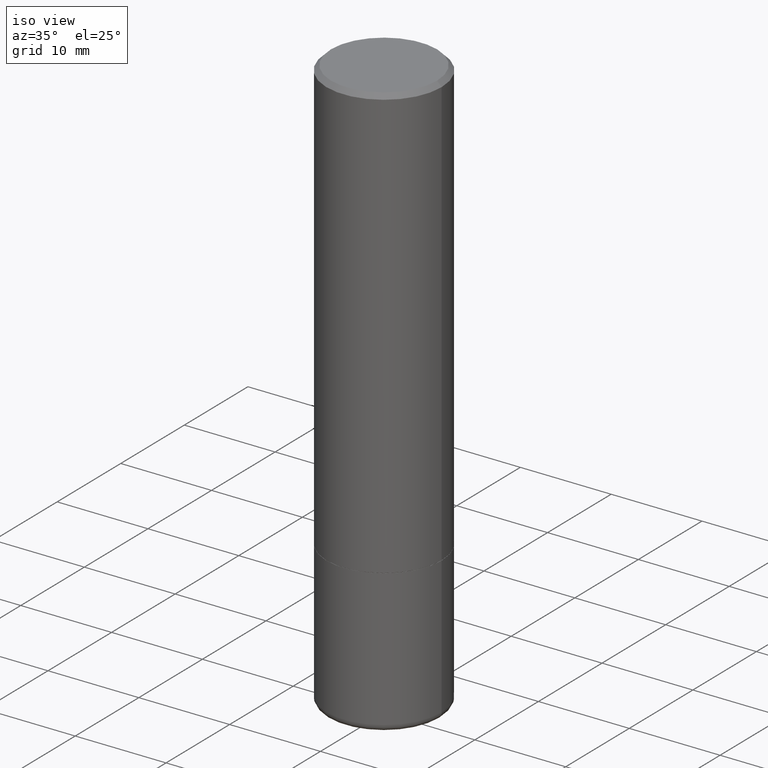
[diagram: clean part render]
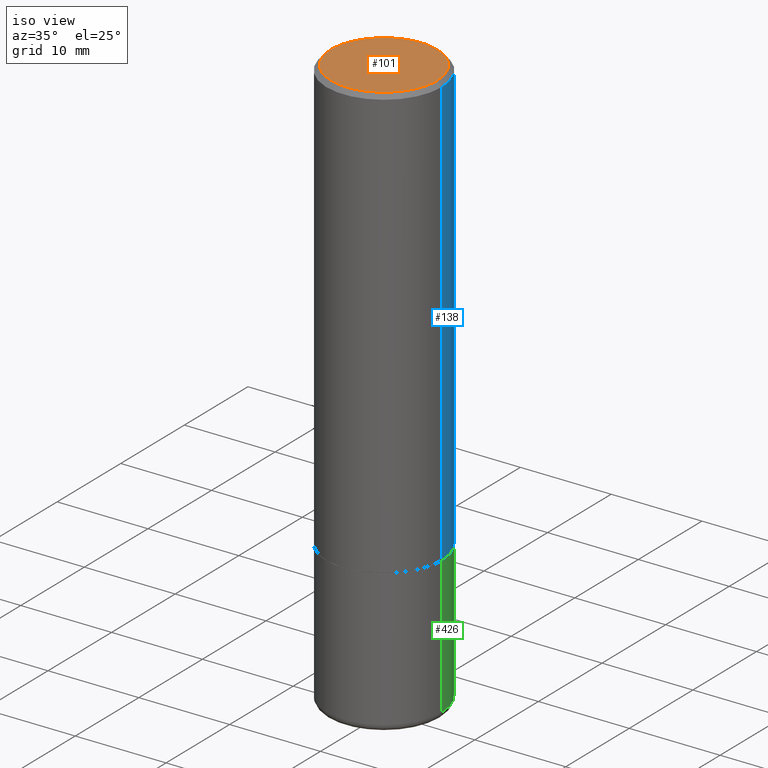
[diagram: same view with three faces highlighted in distinct colors, each labeled with its STEP entity id]
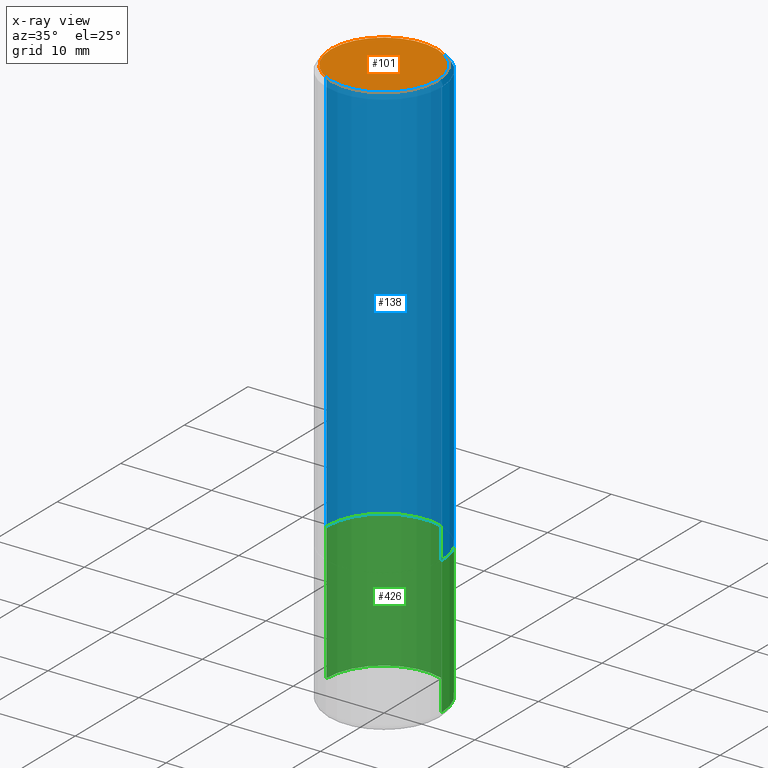
[diagram: x-ray of the same camera — body ghosted, the three highlighted faces saturated]
A machine part, iso view with three faces highlighted in distinct colors.
The next image is the same camera in x-ray (body ghosted, the three faces saturated) — at least one of them is partly hidden behind the body in this view.
Their STEP definitions:

[orange] entity #101 — the highlighted planar face has unit normal (0, -0, -1).
#13 = AXIS2_PLACEMENT_3D ( 'NONE', #108, #253, #174 ) ;
#18 = PLANE ( 'NONE',  #209 ) ;
#25 = EDGE_CURVE ( 'NONE', #64, #37, #145, .T. ) ;
#37 = VERTEX_POINT ( 'NONE', #420 ) ;
#45 = CARTESIAN_POINT ( 'NONE',  ( -1.043851414335219820E-46, 1.490343170380447200E-32, 4.268512490100411279E-18 ) ) ;
#64 = VERTEX_POINT ( 'NONE', #142 ) ;
#84 = EDGE_CURVE ( 'NONE', #37, #64, #194, .T. ) ;
#100 = ORIENTED_EDGE ( 'NONE', *, *, #84, .T. ) ;
#101 = ADVANCED_FACE ( 'NONE', ( #322 ), #18, .F. ) ;
#108 = CARTESIAN_POINT ( 'NONE',  ( -1.043851414335219820E-46, 1.490343170380447200E-32, 4.268512490100411279E-18 ) ) ;
#120 = AXIS2_PLACEMENT_3D ( 'NONE', #45, #353, #278 ) ;
#142 = CARTESIAN_POINT ( 'NONE',  ( -0.2299999999999997324, 1.640996229256270744E-15, 4.268512490089056766E-18 ) ) ;
#145 = CIRCLE ( 'NONE', #13, 0.2299999999999997324 ) ;
#171 = DIRECTION ( 'NONE',  ( -1.000000000000000000, 6.982962677686265922E-15, -4.876176775795935793E-29 ) ) ;
#174 = DIRECTION ( 'NONE',  ( 1.000000000000000000, -6.982962677686266711E-15, 4.876225828469314487E-29 ) ) ;
#194 = CIRCLE ( 'NONE', #120, 0.2299999999999997324 ) ;
#207 = CARTESIAN_POINT ( 'NONE',  ( 1.606081415867839292E-15, 0.2299999999999997324, -8.009064516888723911E-16 ) ) ;
#209 = AXIS2_PLACEMENT_3D ( 'NONE', #207, #343, #171 ) ;
#243 = EDGE_LOOP ( 'NONE', ( #371, #100 ) ) ;
#253 = DIRECTION ( 'NONE',  ( -2.445468806185136597E-29, 3.491481338843145583E-15, 1.000000000000000000 ) ) ;
#278 = DIRECTION ( 'NONE',  ( 1.000000000000000000, -6.982962677686266711E-15, 4.876225828469314487E-29 ) ) ;
#322 = FACE_OUTER_BOUND ( 'NONE', #243, .T. ) ;
#343 = DIRECTION ( 'NONE',  ( 2.438088387897960049E-29, -3.491481338843145188E-15, -1.000000000000000000 ) ) ;
#353 = DIRECTION ( 'NONE',  ( -2.445468806185136597E-29, 3.491481338843145583E-15, 1.000000000000000000 ) ) ;
#371 = ORIENTED_EDGE ( 'NONE', *, *, #25, .T. ) ;
#420 = CARTESIAN_POINT ( 'NONE',  ( 0.2299999999999997324, -1.681434332853597236E-15, 4.268512490111905999E-18 ) ) ;

[blue] entity #138 — the highlighted cylindrical surface (partial cylindrical patch) has radius 6.35 mm, axis along (-0, 0, 1).
#19 = EDGE_CURVE ( 'NONE', #409, #308, #208, .T. ) ;
#36 = ORIENTED_EDGE ( 'NONE', *, *, #436, .F. ) ;
#53 = AXIS2_PLACEMENT_3D ( 'NONE', #140, #74, #276 ) ;
#70 = CARTESIAN_POINT ( 'NONE',  ( -0.2499999999999998890, 1.776356839400249676E-15, -1.229733772563726025E-29 ) ) ;
#72 = CYLINDRICAL_SURFACE ( 'NONE', #114, 0.2499999999999998890 ) ;
#74 = DIRECTION ( 'NONE',  ( -2.445468806185136597E-29, 3.491481338843145583E-15, 1.000000000000000000 ) ) ;
#98 = EDGE_LOOP ( 'NONE', ( #133, #265, #275, #36 ) ) ;
#114 = AXIS2_PLACEMENT_3D ( 'NONE', #352, #349, #147 ) ;
#116 = EDGE_CURVE ( 'NONE', #223, #409, #240, .T. ) ;
#133 = ORIENTED_EDGE ( 'NONE', *, *, #116, .T. ) ;
#135 = VERTEX_POINT ( 'NONE', #358 ) ;
#138 = ADVANCED_FACE ( 'NONE', ( #376 ), #72, .T. ) ;
#140 = CARTESIAN_POINT ( 'NONE',  ( 4.582808542790945516E-29, -6.543036028992054911E-15, -1.874000000000000110 ) ) ;
#147 = DIRECTION ( 'NONE',  ( 1.000000000000000000, -6.982962677686266711E-15, 4.876176775795935793E-29 ) ) ;
#162 = EDGE_CURVE ( 'NONE', #135, #308, #172, .T. ) ;
#172 = CIRCLE ( 'NONE', #257, 0.2499999999999997502 ) ;
#177 = DIRECTION ( 'NONE',  ( -2.445468806185136597E-29, 3.491481338843145583E-15, 1.000000000000000000 ) ) ;
#197 = CARTESIAN_POINT ( 'NONE',  ( 0.2500000000000000555, -8.288776698413622377E-15, -1.874000000000000110 ) ) ;
#208 = LINE ( 'NONE', #70, #311 ) ;
#222 = DIRECTION ( 'NONE',  ( 1.000000000000000000, -6.982962677686267499E-15, 0.000000000000000000 ) ) ;
#223 = VERTEX_POINT ( 'NONE', #197 ) ;
#240 = CIRCLE ( 'NONE', #53, 0.2500000000000000555 ) ;
#257 = AXIS2_PLACEMENT_3D ( 'NONE', #279, #177, #222 ) ;
#265 = ORIENTED_EDGE ( 'NONE', *, *, #19, .T. ) ;
#266 = CARTESIAN_POINT ( 'NONE',  ( -0.2500000000000000000, -1.530075988484207851E-15, -1.874000000000000110 ) ) ;
#275 = ORIENTED_EDGE ( 'NONE', *, *, #162, .F. ) ;
#276 = DIRECTION ( 'NONE',  ( 1.000000000000000000, -6.982962677686265133E-15, 0.000000000000000000 ) ) ;
#279 = CARTESIAN_POINT ( 'NONE',  ( 4.890937612370289799E-31, -6.982962677686315028E-17, -0.02000000000000006981 ) ) ;
#284 = DIRECTION ( 'NONE',  ( -2.445468806185136877E-29, 3.491481338843145188E-15, 1.000000000000000000 ) ) ;
#308 = VERTEX_POINT ( 'NONE', #434 ) ;
#311 = VECTOR ( 'NONE', #284, 39.37007874015748143 ) ;
#349 = DIRECTION ( 'NONE',  ( -2.445468806185136597E-29, 3.491481338843145583E-15, 1.000000000000000000 ) ) ;
#352 = CARTESIAN_POINT ( 'NONE',  ( 0.000000000000000000, 0.000000000000000000, 0.000000000000000000 ) ) ;
#358 = CARTESIAN_POINT ( 'NONE',  ( 0.2499999999999997502, -1.784954126219744217E-15, -0.02000000000000006981 ) ) ;
#369 = VECTOR ( 'NONE', #375, 39.37007874015748143 ) ;
#375 = DIRECTION ( 'NONE',  ( -2.445468806185136877E-29, 3.491481338843145188E-15, 1.000000000000000000 ) ) ;
#376 = FACE_OUTER_BOUND ( 'NONE', #98, .T. ) ;
#409 = VERTEX_POINT ( 'NONE', #266 ) ;
#410 = LINE ( 'NONE', #413, #369 ) ;
#413 = CARTESIAN_POINT ( 'NONE',  ( 0.2499999999999998890, -1.745740669421565889E-15, 1.219044193948983388E-29 ) ) ;
#434 = CARTESIAN_POINT ( 'NONE',  ( -0.2499999999999997502, 1.675911042644701999E-15, -0.02000000000000006981 ) ) ;
#436 = EDGE_CURVE ( 'NONE', #223, #135, #410, .T. ) ;

[green] entity #426 — the highlighted cylindrical surface (partial cylindrical patch) has radius 6.35 mm, axis along (-0, 0, 1).
#2 = ORIENTED_EDGE ( 'NONE', *, *, #128, .T. ) ;
#21 = DIRECTION ( 'NONE',  ( 1.000000000000000000, -6.982962677686266711E-15, 0.000000000000000000 ) ) ;
#22 = DIRECTION ( 'NONE',  ( -2.445468806185136597E-29, 3.491481338843145583E-15, 1.000000000000000000 ) ) ;
#30 = EDGE_CURVE ( 'NONE', #34, #69, #390, .T. ) ;
#34 = VERTEX_POINT ( 'NONE', #149 ) ;
#40 = CIRCLE ( 'NONE', #182, 0.2500000000000000000 ) ;
#47 = AXIS2_PLACEMENT_3D ( 'NONE', #144, #83, #221 ) ;
#50 = CARTESIAN_POINT ( 'NONE',  ( -0.2500000000000000000, -5.808886369236483886E-15, -1.875000000000000000 ) ) ;
#69 = VERTEX_POINT ( 'NONE', #176 ) ;
#83 = DIRECTION ( 'NONE',  ( -2.445468806185136597E-29, 3.491481338843145583E-15, 1.000000000000000000 ) ) ;
#90 = DIRECTION ( 'NONE',  ( -2.445468806185136597E-29, 3.491481338843145583E-15, 1.000000000000000000 ) ) ;
#95 = VERTEX_POINT ( 'NONE', #50 ) ;
#104 = LINE ( 'NONE', #211, #205 ) ;
#127 = ORIENTED_EDGE ( 'NONE', *, *, #30, .F. ) ;
#128 = EDGE_CURVE ( 'NONE', #320, #95, #104, .T. ) ;
#132 = EDGE_CURVE ( 'NONE', #34, #320, #274, .T. ) ;
#144 = CARTESIAN_POINT ( 'NONE',  ( 6.040307951277287977E-29, -8.623958906942569995E-15, -2.470000000000000195 ) ) ;
#149 = CARTESIAN_POINT ( 'NONE',  ( 0.2500000000000000000, -1.036969957636413667E-14, -2.470000000000000195 ) ) ;
#154 = CARTESIAN_POINT ( 'NONE',  ( -0.2500000000000000000, -6.847602067542320320E-15, -2.470000000000000195 ) ) ;
#158 = CARTESIAN_POINT ( 'NONE',  ( 0.000000000000000000, 0.000000000000000000, 0.000000000000000000 ) ) ;
#159 = EDGE_LOOP ( 'NONE', ( #206, #2, #345, #127 ) ) ;
#176 = CARTESIAN_POINT ( 'NONE',  ( 0.2500000000000000000, -8.292268179752465385E-15, -1.875000000000000000 ) ) ;
#182 = AXIS2_PLACEMENT_3D ( 'NONE', #226, #22, #21 ) ;
#205 = VECTOR ( 'NONE', #348, 39.37007874015748143 ) ;
#206 = ORIENTED_EDGE ( 'NONE', *, *, #132, .T. ) ;
#211 = CARTESIAN_POINT ( 'NONE',  ( -0.2500000000000000000, 1.776356839400250465E-15, -1.229733772563726445E-29 ) ) ;
#221 = DIRECTION ( 'NONE',  ( 1.000000000000000000, -6.982962677686266711E-15, 0.000000000000000000 ) ) ;
#226 = CARTESIAN_POINT ( 'NONE',  ( 4.585254011597131119E-29, -6.546527510330898707E-15, -1.875000000000000000 ) ) ;
#274 = CIRCLE ( 'NONE', #47, 0.2500000000000000000 ) ;
#283 = AXIS2_PLACEMENT_3D ( 'NONE', #158, #90, #303 ) ;
#289 = VECTOR ( 'NONE', #388, 39.37007874015748143 ) ;
#291 = EDGE_CURVE ( 'NONE', #69, #95, #40, .T. ) ;
#303 = DIRECTION ( 'NONE',  ( 1.000000000000000000, -6.982962677686266711E-15, 4.876176775795935793E-29 ) ) ;
#320 = VERTEX_POINT ( 'NONE', #154 ) ;
#345 = ORIENTED_EDGE ( 'NONE', *, *, #291, .F. ) ;
#348 = DIRECTION ( 'NONE',  ( -2.445468806185136877E-29, 3.491481338843145188E-15, 1.000000000000000000 ) ) ;
#388 = DIRECTION ( 'NONE',  ( -2.445468806185136877E-29, 3.491481338843145188E-15, 1.000000000000000000 ) ) ;
#390 = LINE ( 'NONE', #422, #289 ) ;
#402 = CYLINDRICAL_SURFACE ( 'NONE', #283, 0.2500000000000000000 ) ;
#408 = FACE_OUTER_BOUND ( 'NONE', #159, .T. ) ;
#422 = CARTESIAN_POINT ( 'NONE',  ( 0.2500000000000000000, -1.745740669421566678E-15, 1.219044193948983948E-29 ) ) ;
#426 = ADVANCED_FACE ( 'NONE', ( #408 ), #402, .T. ) ;